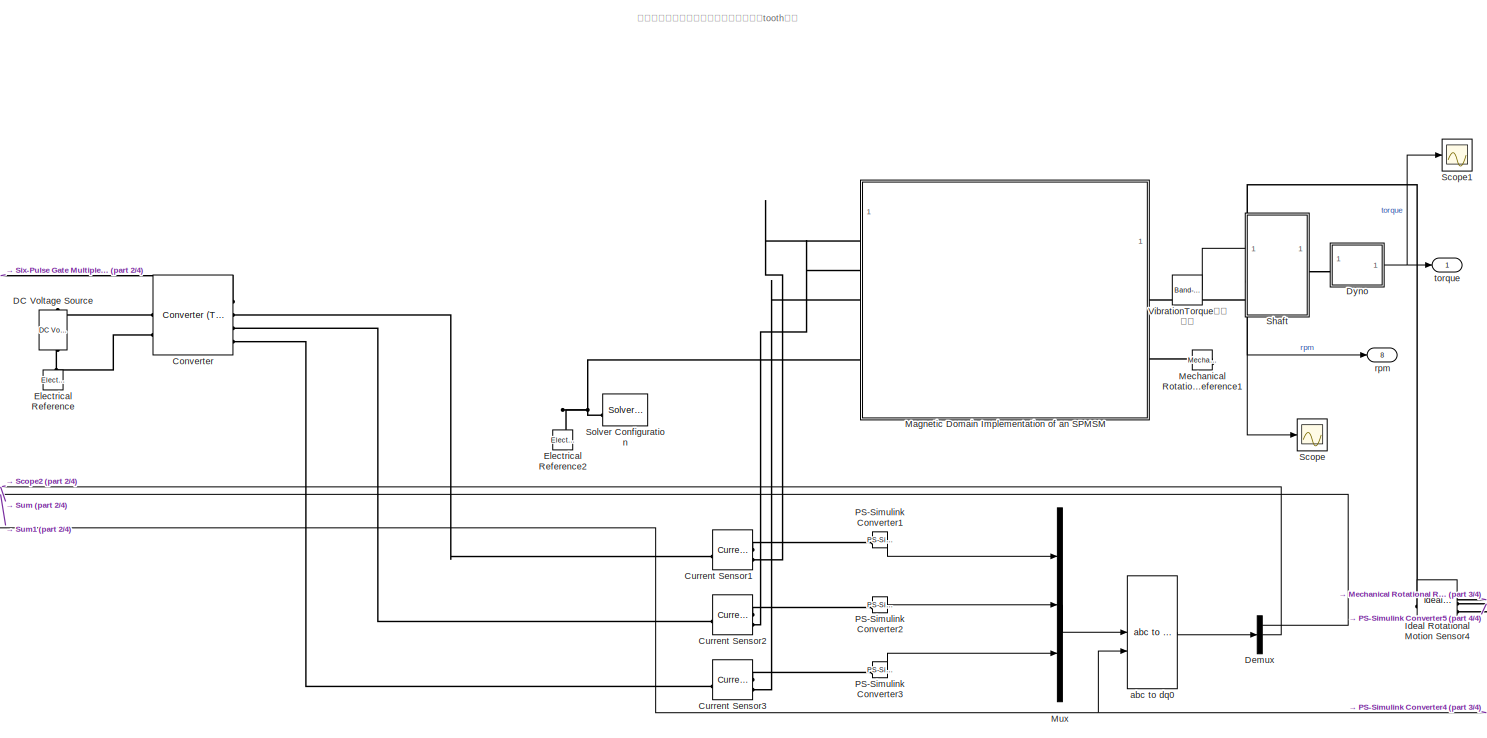
[diagram: root canvas - part 1/4, center side, full height]
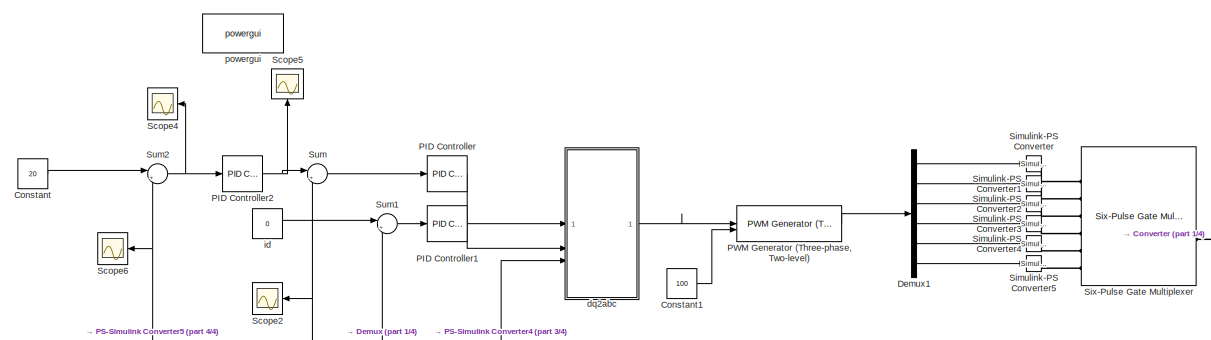
[diagram: root canvas - part 2/4, top left region]
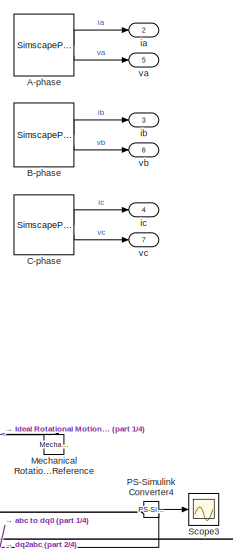
[diagram: root canvas - part 3/4, middle right region]
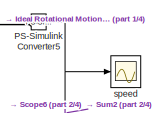
[diagram: root canvas - part 4/4, bottom right region]
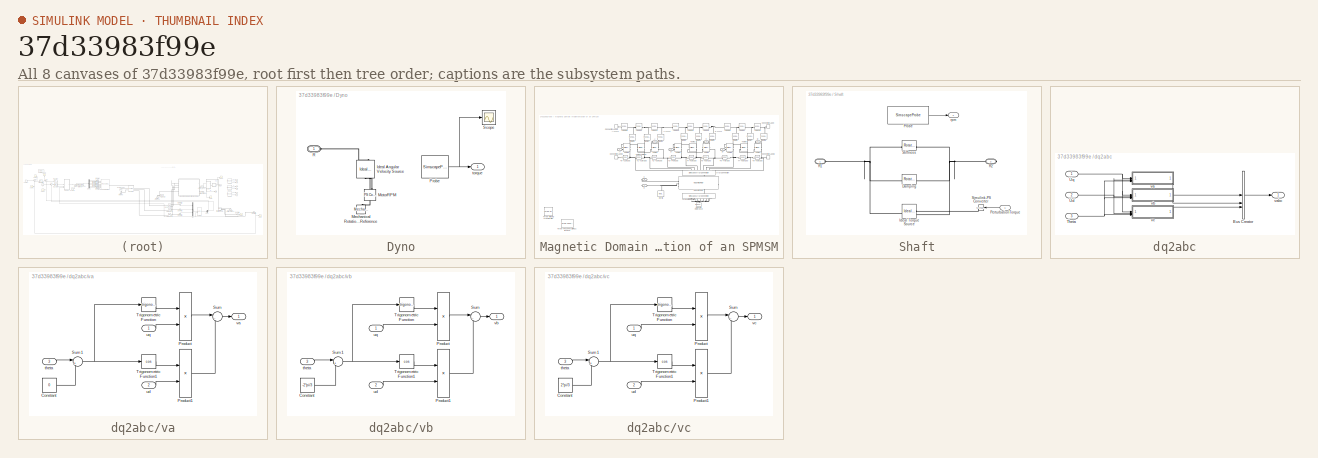
[diagram: thumbnail index - all 8 canvases of the model, root first then tree order]
MODEL slx_37d33983f99e
KIND model
CONFIG AbsTol = auto
CONFIG EnableMultiTasking = off
CONFIG FixedStep = auto
CONFIG MaxStep = auto
CONFIG MinStep = auto
CONFIG RelTol = 1e-3
CONFIG SampleTimeConstraint = Unconstrained
CONFIG SolverName = ode15s
CONFIG StartTime = 0.0
CONFIG StopTime = 10.0
BLOCK [SimscapeProbe] A-phase
  BoundBlock = 214
  Variables = {"i":{"Probing":"ON"},"n.v":{"Probing":"ON"}}
BLOCK [SimscapeProbe] B-phase
  BoundBlock = 215
  Variables = {"i":{"Probing":"ON"},"n.v":{"Probing":"ON"}}
BLOCK [SimscapeProbe] C-phase
  BoundBlock = 216
  Variables = {"i":{"Probing":"ON"},"n.v":{"Probing":"ON"}}
BLOCK [Constant] Constant
  Value = 20
BLOCK [Constant] Constant1
  Value = 100
BLOCK [Reference] Converter  REF=ee_lib/Semiconductors &
Converters/Converters/Converter
(Three-Phase)
  SourceBlock = ee_lib/Semiconductors &\nConverters/Converters/Converter\n(Three-Phase)
  SourceType = Converter\n(Three-Phase)
BLOCK [Reference] Current Sensor1  REF=fl_lib/Electrical/Electrical Sensors/Current Sensor
  SourceBlock = fl_lib/Electrical/Electrical Sensors/Current Sensor
  SourceType = Current Sensor
BLOCK [Reference] Current Sensor2  REF=fl_lib/Electrical/Electrical Sensors/Current Sensor
  SourceBlock = fl_lib/Electrical/Electrical Sensors/Current Sensor
  SourceType = Current Sensor
BLOCK [Reference] Current Sensor3  REF=fl_lib/Electrical/Electrical Sensors/Current Sensor
  SourceBlock = fl_lib/Electrical/Electrical Sensors/Current Sensor
  SourceType = Current Sensor
BLOCK [Reference] DC Voltage Source  REF=fl_lib/Electrical/Electrical Sources/DC Voltage Source
  NameLocation = left
  SourceBlock = fl_lib/Electrical/Electrical Sources/DC Voltage Source
  SourceType = DC Voltage Source
BLOCK [Demux] Demux
  Outputs = 3
BLOCK [Demux] Demux1
  Outputs = 6
BLOCK [SubSystem] Dyno
BLOCK [Reference] Dyno/Ideal Angular Velocity Source  REF=fl_lib/Mechanical/Mechanical Sources/Ideal Angular
Velocity Source
  NameLocation = right
  SourceBlock = fl_lib/Mechanical/Mechanical Sources/Ideal Angular\nVelocity Source
  SourceType = Ideal Angular\nVelocity Source
BLOCK [Reference] Dyno/Mechanical Rotational Reference  REF=fl_lib/Mechanical/Rotational Elements/Mechanical
Rotational Reference
  NameLocation = right
  SourceBlock = fl_lib/Mechanical/Rotational Elements/Mechanical\nRotational Reference
  SourceType = Mechanical\nRotational Reference
BLOCK [Reference] Dyno/MotorRPM  REF=fl_lib/Physical Signals/Sources/PS Constant
  NameLocation = right
  SourceBlock = fl_lib/Physical Signals/Sources/PS Constant
  SourceType = PS Constant
BLOCK [SimscapeProbe] Dyno/Probe
  BoundBlock = 148
  Variables = {"t":{"Probing":"ON"}}
BLOCK [PMIOPort] Dyno/R
  Side = Left
BLOCK [Scope] Dyno/Scope
  ActiveDisplayYMaximum = 1963.7653841058097
  ActiveDisplayYMinimum = -17672.741352339104
  DataLoggingVariableName = ScopeData1
  Floating = off
  GraphicalSettings = {"Style":{"BackgroundColor":[0.12941176470588237,0.12941176470588237,0.12941176470588237],"AxesColor":[0.07058823529411765,0.07058823529411765,0.07058823529411765],"LabelsColor":[0.8509803921568627,0.8509803921568627,0.8509803921568627],"PreserveColors":false,"Visible":[true],"LineStyle":["-"],"LineWidth":[1.5],"BarWidth":[0.9],"LineColor":["auto"],"LineFaceAlpha":[1],"LineEdgeAlpha":[1],"Marker":...<+1990ch>
  MultipleDisplayCache = [{"MaxYLimMag":17672.741352339104,"MaxYLimReal":1963.7653841058097,"MinYLimMag":0,"MinYLimReal":-17672.741352339104,"PlotAsMagnitudePhase":false,"ShowGrid":true,"ShowLegend":false,"Title":"%<SignalLabel>","YLabel":""}]
  NumInputPorts = 1
  ScopeFrameLocation = window
  WasSavedAsWebScope = on
  WindowPosition = [566.000000,347.000000,560.000000,420.000000,]
BLOCK [Outport] Dyno/torque
BLOCK [Reference] Electrical Reference  REF=fl_lib/Electrical/Electrical Elements/Electrical Reference
  NameLocation = right
  SourceBlock = fl_lib/Electrical/Electrical Elements/Electrical Reference
  SourceType = Electrical Reference
BLOCK [Reference] Electrical Reference2  REF=fl_lib/Electrical/Electrical Elements/Electrical Reference
  NameLocation = right
  SourceBlock = fl_lib/Electrical/Electrical Elements/Electrical Reference
  SourceType = Electrical Reference
BLOCK [Reference] Ideal Rotational Motion Sensor4  REF=fl_lib/Mechanical/Mechanical Sensors/Ideal Rotational
Motion Sensor
  SourceBlock = fl_lib/Mechanical/Mechanical Sensors/Ideal Rotational\nMotion Sensor
  SourceType = Ideal Rotational\nMotion Sensor
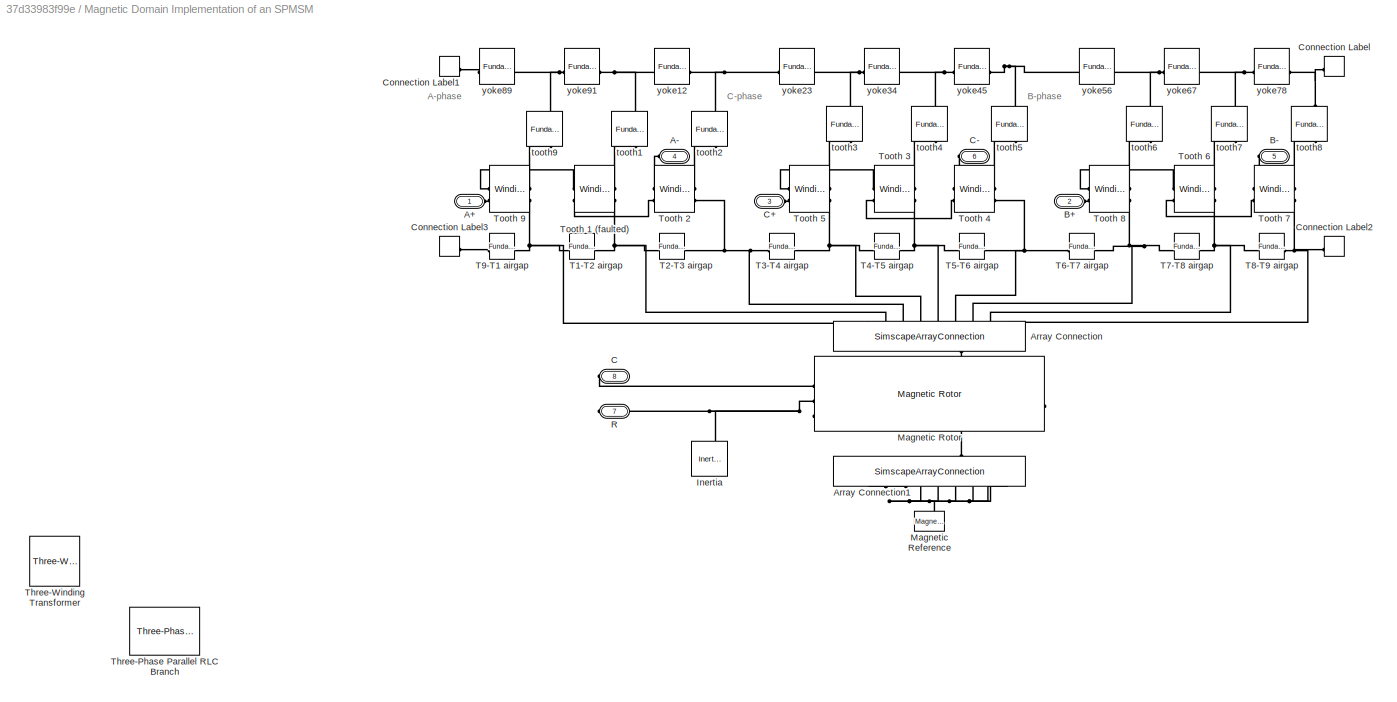
BLOCK [SubSystem] Magnetic Domain Implementation of an SPMSM
BLOCK [PMIOPort] Magnetic Domain Implementation of an SPMSM/A+
  Side = Left
BLOCK [PMIOPort] Magnetic Domain Implementation of an SPMSM/A-
  NameLocation = top
  Port = 4
  Side = Left
BLOCK [SimscapeArrayConnection] Magnetic Domain Implementation of an SPMSM/Array Connection
  Domain = foundation.magnetic.magnetic
  NameLocation = left
  NumScalarElements = 9
BLOCK [SimscapeArrayConnection] Magnetic Domain Implementation of an SPMSM/Array Connection1
  Domain = foundation.magnetic.magnetic
  NameLocation = right
  NumScalarElements = 9
BLOCK [PMIOPort] Magnetic Domain Implementation of an SPMSM/B+
  Port = 2
  Side = Left
BLOCK [PMIOPort] Magnetic Domain Implementation of an SPMSM/B-
  NameLocation = top
  Port = 5
  Side = Left
BLOCK [PMIOPort] Magnetic Domain Implementation of an SPMSM/C
  Port = 8
  Side = Right
BLOCK [PMIOPort] Magnetic Domain Implementation of an SPMSM/C+
  Port = 3
  Side = Left
BLOCK [PMIOPort] Magnetic Domain Implementation of an SPMSM/C-
  NameLocation = top
  Port = 6
  Side = Left
BLOCK [ConnectionLabel] Magnetic Domain Implementation of an SPMSM/Connection Label
  Label = Y
BLOCK [ConnectionLabel] Magnetic Domain Implementation of an SPMSM/Connection Label1
  Label = Y
  NameLocation = top
BLOCK [ConnectionLabel] Magnetic Domain Implementation of an SPMSM/Connection Label2
  Label = SL
BLOCK [ConnectionLabel] Magnetic Domain Implementation of an SPMSM/Connection Label3
  Label = SL
BLOCK [Reference] Magnetic Domain Implementation of an SPMSM/Inertia  REF=fl_lib/Mechanical/Rotational Elements/Inertia
  NameLocation = right
  SourceBlock = fl_lib/Mechanical/Rotational Elements/Inertia
  SourceType = Inertia
BLOCK [Reference] Magnetic Domain Implementation of an SPMSM/Magnetic Reference  REF=fl_lib/Magnetic/Magnetic Elements/Magnetic Reference
  NameLocation = right
  SourceBlock = fl_lib/Magnetic/Magnetic Elements/Magnetic Reference
  SourceType = Magnetic Reference
BLOCK [Reference] Magnetic Domain Implementation of an SPMSM/Magnetic Rotor  REF=ee_lib/Electromechanical/Magnetic Rotor
  SourceBlock = ee_lib/Electromechanical/Magnetic Rotor
  SourceType = Magnetic Rotor
BLOCK [PMIOPort] Magnetic Domain Implementation of an SPMSM/R
  Port = 7
  Side = Right
BLOCK [Reference] Magnetic Domain Implementation of an SPMSM/T1-T2 airgap  REF=fl_lib/Magnetic/Magnetic Elements/Fundamental
Reluctance
  SourceBlock = fl_lib/Magnetic/Magnetic Elements/Fundamental\nReluctance
  SourceType = Fundamental\nReluctance
BLOCK [Reference] Magnetic Domain Implementation of an SPMSM/T2-T3 airgap  REF=fl_lib/Magnetic/Magnetic Elements/Fundamental
Reluctance
  SourceBlock = fl_lib/Magnetic/Magnetic Elements/Fundamental\nReluctance
  SourceType = Fundamental\nReluctance
BLOCK [Reference] Magnetic Domain Implementation of an SPMSM/T3-T4 airgap  REF=fl_lib/Magnetic/Magnetic Elements/Fundamental
Reluctance
  SourceBlock = fl_lib/Magnetic/Magnetic Elements/Fundamental\nReluctance
  SourceType = Fundamental\nReluctance
BLOCK [Reference] Magnetic Domain Implementation of an SPMSM/T4-T5 airgap  REF=fl_lib/Magnetic/Magnetic Elements/Fundamental
Reluctance
  SourceBlock = fl_lib/Magnetic/Magnetic Elements/Fundamental\nReluctance
  SourceType = Fundamental\nReluctance
BLOCK [Reference] Magnetic Domain Implementation of an SPMSM/T5-T6 airgap  REF=fl_lib/Magnetic/Magnetic Elements/Fundamental
Reluctance
  SourceBlock = fl_lib/Magnetic/Magnetic Elements/Fundamental\nReluctance
  SourceType = Fundamental\nReluctance
BLOCK [Reference] Magnetic Domain Implementation of an SPMSM/T6-T7 airgap  REF=fl_lib/Magnetic/Magnetic Elements/Fundamental
Reluctance
  SourceBlock = fl_lib/Magnetic/Magnetic Elements/Fundamental\nReluctance
  SourceType = Fundamental\nReluctance
BLOCK [Reference] Magnetic Domain Implementation of an SPMSM/T7-T8 airgap  REF=fl_lib/Magnetic/Magnetic Elements/Fundamental
Reluctance
  SourceBlock = fl_lib/Magnetic/Magnetic Elements/Fundamental\nReluctance
  SourceType = Fundamental\nReluctance
BLOCK [Reference] Magnetic Domain Implementation of an SPMSM/T8-T9 airgap  REF=fl_lib/Magnetic/Magnetic Elements/Fundamental
Reluctance
  SourceBlock = fl_lib/Magnetic/Magnetic Elements/Fundamental\nReluctance
  SourceType = Fundamental\nReluctance
BLOCK [Reference] Magnetic Domain Implementation of an SPMSM/T9-T1 airgap  REF=fl_lib/Magnetic/Magnetic Elements/Fundamental
Reluctance
  SourceBlock = fl_lib/Magnetic/Magnetic Elements/Fundamental\nReluctance
  SourceType = Fundamental\nReluctance
BLOCK [Reference] Magnetic Domain Implementation of an SPMSM/Three-Phase Parallel RLC Branch  REF=spsThreePhaseParallelRLCBranchLib/Three-Phase
Parallel RLC Branch
  AttributesFormatString = \n
  LibrarySourceBlock = sps_lib/Passives/Three-Phase\nParallel RLC Branch
  SourceBlock = spsThreePhaseParallelRLCBranchLib/Three-Phase\nParallel RLC Branch
  SourceType = Three-Phase Parallel RLC Branch
BLOCK [Reference] Magnetic Domain Implementation of an SPMSM/Three-Winding Transformer  REF=simrfV2elements/Three-Winding
Transformer
  SourceBlock = simrfV2elements/Three-Winding\nTransformer
  SourceType = Three-Winding\nTransformer
BLOCK [Reference] Magnetic Domain Implementation of an SPMSM/Tooth 1 (faulted)  REF=ee_lib/Passive/Winding
  SourceBlock = ee_lib/Passive/Winding
  SourceType = Winding
BLOCK [Reference] Magnetic Domain Implementation of an SPMSM/Tooth 2  REF=ee_lib/Passive/Winding
  SourceBlock = ee_lib/Passive/Winding
  SourceType = Winding
BLOCK [Reference] Magnetic Domain Implementation of an SPMSM/Tooth 3  REF=ee_lib/Passive/Winding
  SourceBlock = ee_lib/Passive/Winding
  SourceType = Winding
BLOCK [Reference] Magnetic Domain Implementation of an SPMSM/Tooth 4  REF=ee_lib/Passive/Winding
  SourceBlock = ee_lib/Passive/Winding
  SourceType = Winding
BLOCK [Reference] Magnetic Domain Implementation of an SPMSM/Tooth 5  REF=ee_lib/Passive/Winding
  SourceBlock = ee_lib/Passive/Winding
  SourceType = Winding
BLOCK [Reference] Magnetic Domain Implementation of an SPMSM/Tooth 6  REF=ee_lib/Passive/Winding
  SourceBlock = ee_lib/Passive/Winding
  SourceType = Winding
BLOCK [Reference] Magnetic Domain Implementation of an SPMSM/Tooth 7  REF=ee_lib/Passive/Winding
  SourceBlock = ee_lib/Passive/Winding
  SourceType = Winding
BLOCK [Reference] Magnetic Domain Implementation of an SPMSM/Tooth 8  REF=ee_lib/Passive/Winding
  SourceBlock = ee_lib/Passive/Winding
  SourceType = Winding
BLOCK [Reference] Magnetic Domain Implementation of an SPMSM/Tooth 9  REF=ee_lib/Passive/Winding
  SourceBlock = ee_lib/Passive/Winding
  SourceType = Winding
BLOCK [Reference] Magnetic Domain Implementation of an SPMSM/tooth1  REF=fl_lib/Magnetic/Magnetic Elements/Fundamental
Reluctance
  NameLocation = left
  SourceBlock = fl_lib/Magnetic/Magnetic Elements/Fundamental\nReluctance
  SourceType = Fundamental\nReluctance
BLOCK [Reference] Magnetic Domain Implementation of an SPMSM/tooth2  REF=fl_lib/Magnetic/Magnetic Elements/Fundamental
Reluctance
  NameLocation = left
  SourceBlock = fl_lib/Magnetic/Magnetic Elements/Fundamental\nReluctance
  SourceType = Fundamental\nReluctance
BLOCK [Reference] Magnetic Domain Implementation of an SPMSM/tooth3  REF=fl_lib/Magnetic/Magnetic Elements/Fundamental
Reluctance
  NameLocation = left
  SourceBlock = fl_lib/Magnetic/Magnetic Elements/Fundamental\nReluctance
  SourceType = Fundamental\nReluctance
BLOCK [Reference] Magnetic Domain Implementation of an SPMSM/tooth4  REF=fl_lib/Magnetic/Magnetic Elements/Fundamental
Reluctance
  NameLocation = left
  SourceBlock = fl_lib/Magnetic/Magnetic Elements/Fundamental\nReluctance
  SourceType = Fundamental\nReluctance
BLOCK [Reference] Magnetic Domain Implementation of an SPMSM/tooth5  REF=fl_lib/Magnetic/Magnetic Elements/Fundamental
Reluctance
  NameLocation = left
  SourceBlock = fl_lib/Magnetic/Magnetic Elements/Fundamental\nReluctance
  SourceType = Fundamental\nReluctance
BLOCK [Reference] Magnetic Domain Implementation of an SPMSM/tooth6  REF=fl_lib/Magnetic/Magnetic Elements/Fundamental
Reluctance
  NameLocation = left
  SourceBlock = fl_lib/Magnetic/Magnetic Elements/Fundamental\nReluctance
  SourceType = Fundamental\nReluctance
BLOCK [Reference] Magnetic Domain Implementation of an SPMSM/tooth7  REF=fl_lib/Magnetic/Magnetic Elements/Fundamental
Reluctance
  NameLocation = left
  SourceBlock = fl_lib/Magnetic/Magnetic Elements/Fundamental\nReluctance
  SourceType = Fundamental\nReluctance
BLOCK [Reference] Magnetic Domain Implementation of an SPMSM/tooth8  REF=fl_lib/Magnetic/Magnetic Elements/Fundamental
Reluctance
  NameLocation = left
  SourceBlock = fl_lib/Magnetic/Magnetic Elements/Fundamental\nReluctance
  SourceType = Fundamental\nReluctance
BLOCK [Reference] Magnetic Domain Implementation of an SPMSM/tooth9  REF=fl_lib/Magnetic/Magnetic Elements/Fundamental
Reluctance
  NameLocation = left
  SourceBlock = fl_lib/Magnetic/Magnetic Elements/Fundamental\nReluctance
  SourceType = Fundamental\nReluctance
BLOCK [Reference] Magnetic Domain Implementation of an SPMSM/yoke12  REF=fl_lib/Magnetic/Magnetic Elements/Fundamental
Reluctance
  SourceBlock = fl_lib/Magnetic/Magnetic Elements/Fundamental\nReluctance
  SourceType = Fundamental\nReluctance
BLOCK [Reference] Magnetic Domain Implementation of an SPMSM/yoke23  REF=fl_lib/Magnetic/Magnetic Elements/Fundamental
Reluctance
  SourceBlock = fl_lib/Magnetic/Magnetic Elements/Fundamental\nReluctance
  SourceType = Fundamental\nReluctance
BLOCK [Reference] Magnetic Domain Implementation of an SPMSM/yoke34  REF=fl_lib/Magnetic/Magnetic Elements/Fundamental
Reluctance
  SourceBlock = fl_lib/Magnetic/Magnetic Elements/Fundamental\nReluctance
  SourceType = Fundamental\nReluctance
BLOCK [Reference] Magnetic Domain Implementation of an SPMSM/yoke45  REF=fl_lib/Magnetic/Magnetic Elements/Fundamental
Reluctance
  SourceBlock = fl_lib/Magnetic/Magnetic Elements/Fundamental\nReluctance
  SourceType = Fundamental\nReluctance
BLOCK [Reference] Magnetic Domain Implementation of an SPMSM/yoke56  REF=fl_lib/Magnetic/Magnetic Elements/Fundamental
Reluctance
  SourceBlock = fl_lib/Magnetic/Magnetic Elements/Fundamental\nReluctance
  SourceType = Fundamental\nReluctance
BLOCK [Reference] Magnetic Domain Implementation of an SPMSM/yoke67  REF=fl_lib/Magnetic/Magnetic Elements/Fundamental
Reluctance
  SourceBlock = fl_lib/Magnetic/Magnetic Elements/Fundamental\nReluctance
  SourceType = Fundamental\nReluctance
BLOCK [Reference] Magnetic Domain Implementation of an SPMSM/yoke78  REF=fl_lib/Magnetic/Magnetic Elements/Fundamental
Reluctance
  SourceBlock = fl_lib/Magnetic/Magnetic Elements/Fundamental\nReluctance
  SourceType = Fundamental\nReluctance
BLOCK [Reference] Magnetic Domain Implementation of an SPMSM/yoke89  REF=fl_lib/Magnetic/Magnetic Elements/Fundamental
Reluctance
  SourceBlock = fl_lib/Magnetic/Magnetic Elements/Fundamental\nReluctance
  SourceType = Fundamental\nReluctance
BLOCK [Reference] Magnetic Domain Implementation of an SPMSM/yoke91  REF=fl_lib/Magnetic/Magnetic Elements/Fundamental
Reluctance
  SourceBlock = fl_lib/Magnetic/Magnetic Elements/Fundamental\nReluctance
  SourceType = Fundamental\nReluctance
BLOCK [Reference] Mechanical Rotational Reference  REF=fl_lib/Mechanical/Rotational Elements/Mechanical
Rotational Reference
  NameLocation = right
  SourceBlock = fl_lib/Mechanical/Rotational Elements/Mechanical\nRotational Reference
  SourceType = Mechanical\nRotational Reference
BLOCK [Reference] Mechanical Rotational Reference1  REF=fl_lib/Mechanical/Rotational Elements/Mechanical
Rotational Reference
  SourceBlock = fl_lib/Mechanical/Rotational Elements/Mechanical\nRotational Reference
  SourceType = Mechanical\nRotational Reference
BLOCK [Mux] Mux
  DisplayOption = bar
  Inputs = 3
BLOCK [Reference] PID Controller  REF=slpidlib/PID Controller
  SourceBlock = slpidlib/PID Controller
  SourceType = PID 1dof
BLOCK [Reference] PID Controller1  REF=slpidlib/PID Controller
  SourceBlock = slpidlib/PID Controller
  SourceType = PID 1dof
BLOCK [Reference] PID Controller2  REF=slpidlib/PID Controller
  SourceBlock = slpidlib/PID Controller
  SourceType = PID 1dof
BLOCK [Reference] PS-Simulink Converter1  REF=nesl_utility/PS-Simulink
Converter
  SourceBlock = nesl_utility/PS-Simulink\nConverter
  SourceType = PS-Simulink\nConverter
BLOCK [Reference] PS-Simulink Converter2  REF=nesl_utility/PS-Simulink
Converter
  SourceBlock = nesl_utility/PS-Simulink\nConverter
  SourceType = PS-Simulink\nConverter
BLOCK [Reference] PS-Simulink Converter3  REF=nesl_utility/PS-Simulink
Converter
  SourceBlock = nesl_utility/PS-Simulink\nConverter
  SourceType = PS-Simulink\nConverter
BLOCK [Reference] PS-Simulink Converter4  REF=nesl_utility/PS-Simulink
Converter
  SourceBlock = nesl_utility/PS-Simulink\nConverter
  SourceType = PS-Simulink\nConverter
BLOCK [Reference] PS-Simulink Converter5  REF=nesl_utility/PS-Simulink
Converter
  SourceBlock = nesl_utility/PS-Simulink\nConverter
  SourceType = PS-Simulink\nConverter
BLOCK [Reference] PWM Generator (Three-phase, Two-level)  REF=eePwmGeneratorTwoLevel/PWM Generator
(Three-phase, Two-level)
  LibrarySourceBlock = ee_sl_lib/Pulse Width\nModulation/PWM Generator\n(Three-phase, Two-level)
  SourceBlock = eePwmGeneratorTwoLevel/PWM Generator\n(Three-phase, Two-level)
  SourceType = PWM Generator (three-phase, two-level)
BLOCK [Scope] Scope
  ActiveDisplayYMaximum = 16.410945963930487
  ActiveDisplayYMinimum = 5.9889874068411224
  Floating = off
  GraphicalSettings = {"AxesScalingProperties":{"AlignXAxis":"Center","AlignYAxis":"Center","AutoScaleXAxisLimits":false,"AxesScaling":"Manual","AxesScalingNumUpdates":10,"ExpandOnly":true,"ScaleAxesLimitsAtStop":false,"XAxisDataRange":100,"YAxisDataRange":80},"DisplayProperties":{"ColorOrder":["auto","auto","auto","auto","auto","auto","auto","auto","auto","auto","auto","auto","auto","auto","auto","auto","auto","auto",...<+1995ch>
  MultipleDisplayCache = [{"MaxYLimMag":17.686941493053482,"MaxYLimReal":16.410945963930487,"MinYLimMag":0,"MinYLimReal":5.9889874068411224,"PlotAsMagnitudePhase":false,"ShowGrid":true,"ShowLegend":false,"Title":"%<SignalLabel>","YLabel":""}]
  NumInputPorts = 1
  ScopeFrameLocation = window
  WasSavedAsWebScope = on
  WindowPosition = [680.000000,330.000000,560.000000,420.000000,]
BLOCK [Scope] Scope1
  ActiveDisplayYMaximum = 1963.7070418694955
  ActiveDisplayYMinimum = -17672.734869868404
  DataLoggingVariableName = ScopeData2
  Floating = off
  GraphicalSettings = {"Style":{"BackgroundColor":[0.12941176470588237,0.12941176470588237,0.12941176470588237],"AxesColor":[0.07058823529411765,0.07058823529411765,0.07058823529411765],"LabelsColor":[0.8509803921568627,0.8509803921568627,0.8509803921568627],"PreserveColors":false,"Visible":[true],"LineStyle":["-"],"LineWidth":[1.5],"BarWidth":[0.9],"LineColor":["auto"],"LineFaceAlpha":[1],"LineEdgeAlpha":[1],"Marker":...<+1894ch>
  MultipleDisplayCache = [{"MaxYLimMag":17672.734869868404,"MaxYLimReal":1963.7070418694955,"MinYLimMag":0,"MinYLimReal":-17672.734869868404,"PlotAsMagnitudePhase":false,"ShowGrid":true,"ShowLegend":false,"Title":"%<SignalLabel>","YLabel":""}]
  NumInputPorts = 1
  ScopeFrameLocation = window
  WasSavedAsWebScope = on
  WindowPosition = [630.000000,333.000000,560.000000,420.000000,]
BLOCK [Scope] Scope2
  ActiveDisplayYMaximum = 0.436398147050316
  ActiveDisplayYMinimum = -0.416473738906253
  DataLoggingVariableName = ScopeData5
  Floating = off
  GraphicalSettings = {"AxesScalingProperties":{"AlignXAxis":"Center","AlignYAxis":"Center","AutoScaleXAxisLimits":false,"AxesScaling":"Manual","AxesScalingNumUpdates":10,"ExpandOnly":true,"ScaleAxesLimitsAtStop":false,"XAxisDataRange":100,"YAxisDataRange":80},"DisplayProperties":{"ColorOrder":["auto","auto","auto","auto","auto","auto","auto","auto","auto","auto","auto","auto","auto","auto","auto","auto","auto","auto",...<+2024ch>
  MultipleDisplayCache = [{"MaxYLimMag":8.6529136210454123,"MaxYLimReal":0.436398147050316,"MinYLimMag":0,"MinYLimReal":-0.416473738906253,"PlotAsMagnitudePhase":false,"ShowGrid":true,"ShowLegend":true,"Title":"%<SignalLabel>","YLabel":"скорость"}]
  NumInputPorts = 1
  ScopeFrameLocation = window
  ShowLegend = on
  ShowTimeAxisLabel = on
  WasSavedAsWebScope = on
  WindowPosition = [1.000000,49.000000,1920.000000,954.000000,]
  YLabel = скорость
BLOCK [Scope] Scope3
  ActiveDisplayYMaximum = 188.49485684758849
  ActiveDisplayYMinimum = -20.943872983065386
  DataLoggingVariableName = ScopeData3
  Floating = off
  GraphicalSettings = {"Style":{"BackgroundColor":[0.12941176470588237,0.12941176470588237,0.12941176470588237],"AxesColor":[0.07058823529411765,0.07058823529411765,0.07058823529411765],"LabelsColor":[0.8509803921568627,0.8509803921568627,0.8509803921568627],"PreserveColors":false,"Visible":[true],"LineStyle":["-"],"LineWidth":[1.5],"BarWidth":[0.9],"LineColor":["auto"],"LineFaceAlpha":[1],"LineEdgeAlpha":[1],"Marker":...<+2003ch>
  MultipleDisplayCache = [{"MaxYLimMag":188.49485684758849,"MaxYLimReal":188.49485684758849,"MinYLimMag":0,"MinYLimReal":-20.943872983065386,"PlotAsMagnitudePhase":false,"ShowGrid":true,"ShowLegend":false,"Title":"%<SignalLabel>","YLabel":""}]
  NumInputPorts = 1
  ScopeFrameLocation = window
  WasSavedAsWebScope = on
  WindowPosition = [993.000000,465.000000,560.000000,428.000000,]
BLOCK [Scope] Scope4
  ActiveDisplayYMaximum = 20.092232680750982
  ActiveDisplayYMinimum = 2.2678285118136117
  DataLoggingVariableName = ScopeData8
  Floating = off
  GraphicalSettings = {"AxesScalingProperties":{"AlignXAxis":"Center","AlignYAxis":"Center","AutoScaleXAxisLimits":false,"AxesScaling":"Manual","AxesScalingNumUpdates":10,"ExpandOnly":true,"ScaleAxesLimitsAtStop":false,"XAxisDataRange":100,"YAxisDataRange":80},"DisplayProperties":{"ColorOrder":["auto","auto","auto","auto","auto","auto","auto","auto","auto","auto","auto","auto","auto","auto","auto","auto","auto","auto",...<+2008ch>
  MultipleDisplayCache = [{"MaxYLimMag":21.965140559625347,"MaxYLimReal":20.092232680750982,"MinYLimMag":2.3137349633718949,"MinYLimReal":2.2678285118136117,"PlotAsMagnitudePhase":false,"ShowGrid":true,"ShowLegend":true,"Title":"%<SignalLabel>","YLabel":"скорость"}]
  NumInputPorts = 1
  ScopeFrameLocation = window
  ShowLegend = on
  ShowTimeAxisLabel = on
  WasSavedAsWebScope = on
  WindowPosition = [1.000000,49.000000,1920.000000,954.000000,]
  YLabel = скорость
BLOCK [Scope] Scope5
  ActiveDisplayYMaximum = 1942.3454210939431
  ActiveDisplayYMinimum = -203.76901912599916
  DataLoggingVariableName = ScopeData9
  Floating = off
  GraphicalSettings = {"Style":{"BackgroundColor":[0.12941176470588237,0.12941176470588237,0.12941176470588237],"AxesColor":[0.07058823529411765,0.07058823529411765,0.07058823529411765],"LabelsColor":[0.8509803921568627,0.8509803921568627,0.8509803921568627],"PreserveColors":false,"Visible":[true],"LineStyle":["-"],"LineWidth":[1.5],"BarWidth":[0.9],"LineColor":["auto"],"LineFaceAlpha":[1],"LineEdgeAlpha":[1],"Marker":...<+2027ch>
  MultipleDisplayCache = [{"MaxYLimMag":1942.3454210939431,"MaxYLimReal":1942.3454210939431,"MinYLimMag":0,"MinYLimReal":-203.76901912599916,"PlotAsMagnitudePhase":false,"ShowGrid":true,"ShowLegend":true,"Title":"%<SignalLabel>","YLabel":"скорость"}]
  NameLocation = left
  NumInputPorts = 1
  ScopeFrameLocation = window
  ShowLegend = on
  ShowTimeAxisLabel = on
  WasSavedAsWebScope = on
  WindowPosition = [1.000000,49.000000,1920.000000,954.000000,]
  YLabel = скорость
BLOCK [Scope] Scope6
  ActiveDisplayYMaximum = 18.4251262370962
  ActiveDisplayYMinimum = -2.0472362485662443
  DataLoggingVariableName = ScopeData6
  Floating = off
  GraphicalSettings = {"Style":{"BackgroundColor":[0.12941176470588237,0.12941176470588237,0.12941176470588237],"AxesColor":[0.07058823529411765,0.07058823529411765,0.07058823529411765],"LabelsColor":[0.8509803921568627,0.8509803921568627,0.8509803921568627],"PreserveColors":false,"Visible":[true],"LineStyle":["-"],"LineWidth":[1.5],"BarWidth":[0.9],"LineColor":["auto"],"LineFaceAlpha":[1],"LineEdgeAlpha":[1],"Marker":...<+2041ch>
  MultipleDisplayCache = [{"MaxYLimMag":18.4251262370962,"MaxYLimReal":18.4251262370962,"MinYLimMag":0,"MinYLimReal":-2.0472362485662443,"PlotAsMagnitudePhase":false,"ShowGrid":true,"ShowLegend":true,"Title":"%<SignalLabel>","YLabel":"скорость"}]
  NumInputPorts = 1
  ScopeFrameLocation = window
  ShowLegend = on
  ShowTimeAxisLabel = on
  WasSavedAsWebScope = on
  WindowPosition = [1.000000,49.000000,1920.000000,954.000000,]
  YLabel = скорость
BLOCK [SubSystem] Shaft
  NameLocation = top
  PortSchema = {"entries":[{"content":{"sides":[{"content":{"connectorIds":["In1","LConn1"]},"type":"ConnectorPlacement.EquallySpacedRectSide","uuid":"d15f0b0a-376f-42bd-94fa-6b80795b7e9e"},{"content":{"connectorIds":["RConn1"],"side":"RIGHT"},"type":"ConnectorPlacement.EquallySpacedRectSide","uuid":"1c10d066-ee05-4c09-9add-16f0039017c8"},{"content":{"connectorIds":["Out1"],"side":"TOP"},"type":"ConnectorPlaceme...<+383ch>
BLOCK [Reference] Shaft/Damping  REF=fl_lib/Mechanical/Rotational Elements/Rotational Damper
  SourceBlock = fl_lib/Mechanical/Rotational Elements/Rotational Damper
  SourceType = Rotational Damper
BLOCK [Reference] Shaft/Ideal Torque Source  REF=fl_lib/Mechanical/Mechanical Sources/Ideal Torque Source
  SourceBlock = fl_lib/Mechanical/Mechanical Sources/Ideal Torque Source
  SourceType = Ideal Torque Source
BLOCK [Inport] Shaft/PerturbationTorque
  NameLocation = top
BLOCK [SimscapeProbe] Shaft/Probe
  BoundBlock = 225
  Variables = {"R.w":{"Probing":"ON"}}
BLOCK [PMIOPort] Shaft/R1
  Side = Left
BLOCK [PMIOPort] Shaft/R2
  Port = 2
  Side = Right
BLOCK [Reference] Shaft/Simulink-PS Converter  REF=nesl_utility/Simulink-PS
Converter
  NameLocation = top
  SourceBlock = nesl_utility/Simulink-PS\nConverter
  SourceType = Simulink-PS\nConverter
BLOCK [Reference] Shaft/Stiffness  REF=fl_lib/Mechanical/Rotational Elements/Rotational Spring
  SourceBlock = fl_lib/Mechanical/Rotational Elements/Rotational Spring
  SourceType = Rotational Spring
BLOCK [Outport] Shaft/rpm
BLOCK [Reference] Simulink-PS Converter  REF=nesl_utility/Simulink-PS
Converter
  SourceBlock = nesl_utility/Simulink-PS\nConverter
  SourceType = Simulink-PS\nConverter
BLOCK [Reference] Simulink-PS Converter1  REF=nesl_utility/Simulink-PS
Converter
  SourceBlock = nesl_utility/Simulink-PS\nConverter
  SourceType = Simulink-PS\nConverter
BLOCK [Reference] Simulink-PS Converter2  REF=nesl_utility/Simulink-PS
Converter
  SourceBlock = nesl_utility/Simulink-PS\nConverter
  SourceType = Simulink-PS\nConverter
BLOCK [Reference] Simulink-PS Converter3  REF=nesl_utility/Simulink-PS
Converter
  SourceBlock = nesl_utility/Simulink-PS\nConverter
  SourceType = Simulink-PS\nConverter
BLOCK [Reference] Simulink-PS Converter4  REF=nesl_utility/Simulink-PS
Converter
  SourceBlock = nesl_utility/Simulink-PS\nConverter
  SourceType = Simulink-PS\nConverter
BLOCK [Reference] Simulink-PS Converter5  REF=nesl_utility/Simulink-PS
Converter
  SourceBlock = nesl_utility/Simulink-PS\nConverter
  SourceType = Simulink-PS\nConverter
BLOCK [Reference] Six-Pulse Gate Multiplexer  REF=ee_lib/Semiconductors &
Converters/Converters/Six-Pulse Gate
Multiplexer
  SourceBlock = ee_lib/Semiconductors &\nConverters/Converters/Six-Pulse Gate\nMultiplexer
  SourceType = Six-Pulse Gate\nMultiplexer
BLOCK [Reference] Solver Configuration  REF=nesl_utility/Solver
Configuration
  SourceBlock = nesl_utility/Solver\nConfiguration
  SourceType = Solver\nConfiguration
BLOCK [Sum] Sum
  Inputs = |+-
BLOCK [Sum] Sum1
  Inputs = |+-
BLOCK [Sum] Sum2
  Inputs = |+-
BLOCK [Reference] VibrationTorque震动转矩  REF=simulink/Sources/Band-Limited
White Noise
  SourceBlock = simulink/Sources/Band-Limited\nWhite Noise
  SourceType = Band-Limited White Noise.
BLOCK [Reference] abc to dq0  REF=spsabctodq0Lib/abc to dq0
  LibrarySourceBlock = sps_lib/Control/abc to dq0
  SourceBlock = spsabctodq0Lib/abc to dq0
  SourceType = abc to dq0 Transformation
BLOCK [SubSystem] dq2abc
BLOCK [BusCreator] dq2abc/Bus Creator
  DisplayOption = bar
  InheritFromInputs = on
  Inputs = 3
BLOCK [Inport] dq2abc/Theta
  Port = 3
BLOCK [Inport] dq2abc/Ud
  Port = 2
BLOCK [Inport] dq2abc/Uq
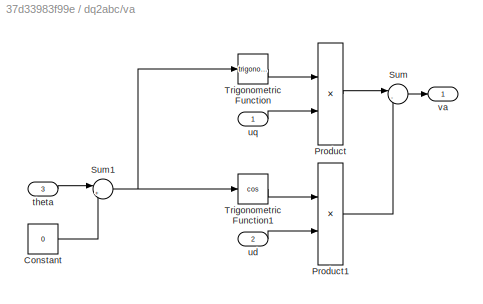
BLOCK [SubSystem] dq2abc/va
BLOCK [Constant] dq2abc/va/Constant
  Value = 0
BLOCK [Product] dq2abc/va/Product
BLOCK [Product] dq2abc/va/Product1
BLOCK [Sum] dq2abc/va/Sum
  Inputs = |-+
BLOCK [Sum] dq2abc/va/Sum1
  Inputs = |++
BLOCK [Trigonometry] dq2abc/va/Trigonometric Function
BLOCK [Trigonometry] dq2abc/va/Trigonometric Function1
  Operator = cos
BLOCK [Inport] dq2abc/va/theta
  NameLocation = top
  Port = 3
BLOCK [Inport] dq2abc/va/ud
  Port = 2
BLOCK [Inport] dq2abc/va/uq
BLOCK [Outport] dq2abc/va/va
  VectorParamsAs1DForOutWhenUnconnected = off
BLOCK [Outport] dq2abc/vabc
  VectorParamsAs1DForOutWhenUnconnected = off
BLOCK [SubSystem] dq2abc/vb
BLOCK [Constant] dq2abc/vb/Constant
  Value = -2*pi/3
BLOCK [Product] dq2abc/vb/Product
BLOCK [Product] dq2abc/vb/Product1
BLOCK [Sum] dq2abc/vb/Sum
  Inputs = |-+
BLOCK [Sum] dq2abc/vb/Sum1
  Inputs = |++
BLOCK [Trigonometry] dq2abc/vb/Trigonometric Function
BLOCK [Trigonometry] dq2abc/vb/Trigonometric Function1
  Operator = cos
BLOCK [Inport] dq2abc/vb/theta
  NameLocation = top
  Port = 3
BLOCK [Inport] dq2abc/vb/ud
  Port = 2
BLOCK [Inport] dq2abc/vb/uq
BLOCK [Outport] dq2abc/vb/vb
  VectorParamsAs1DForOutWhenUnconnected = off
BLOCK [SubSystem] dq2abc/vc
BLOCK [Constant] dq2abc/vc/Constant
  Value = 2*pi/3
BLOCK [Product] dq2abc/vc/Product
BLOCK [Product] dq2abc/vc/Product1
BLOCK [Sum] dq2abc/vc/Sum
  Inputs = |-+
BLOCK [Sum] dq2abc/vc/Sum1
  Inputs = |++
BLOCK [Trigonometry] dq2abc/vc/Trigonometric Function
BLOCK [Trigonometry] dq2abc/vc/Trigonometric Function1
  Operator = cos
BLOCK [Inport] dq2abc/vc/theta
  NameLocation = top
  Port = 3
BLOCK [Inport] dq2abc/vc/ud
  Port = 2
BLOCK [Inport] dq2abc/vc/uq
BLOCK [Outport] dq2abc/vc/vc
  VectorParamsAs1DForOutWhenUnconnected = off
BLOCK [Outport] ia
  Port = 2
BLOCK [Outport] ib
  Port = 3
BLOCK [Outport] ic
  Port = 4
BLOCK [Constant] id
  Value = 0
BLOCK [Reference] powergui  REF=spspowerguiLib/powergui
  LibrarySourceBlock = sps_lib/powergui
  Priority = 1
  SourceBlock = spspowerguiLib/powergui
  SourceType = PSB option menu block
BLOCK [Outport] rpm
  Port = 8
BLOCK [Scope] speed
  ActiveDisplayYMaximum = 15.760330288068594
  ActiveDisplayYMinimum = 15.541713214540213
  DataLoggingVariableName = ScopeData7
  Floating = off
  GraphicalSettings = {"AxesScalingProperties":{"AlignXAxis":"Center","AlignYAxis":"Center","AutoScaleXAxisLimits":false,"AxesScaling":"Manual","AxesScalingNumUpdates":10,"ExpandOnly":true,"ScaleAxesLimitsAtStop":false,"XAxisDataRange":100,"YAxisDataRange":80},"DisplayProperties":{"ColorOrder":["auto","auto","auto","auto","auto","auto","auto","auto","auto","auto","auto","auto","auto","auto","auto","auto","auto","auto",...<+2014ch>
  MultipleDisplayCache = [{"MaxYLimMag":188.49485684758849,"MaxYLimReal":15.760330288068594,"MinYLimMag":0,"MinYLimReal":15.541713214540213,"PlotAsMagnitudePhase":false,"ShowGrid":true,"ShowLegend":false,"Title":"%<SignalLabel>","YLabel":""}]
  NumInputPorts = 1
  ScopeFrameLocation = window
  WasSavedAsWebScope = on
  WindowPosition = [593.000000,316.000000,560.000000,428.000000,]
BLOCK [Outport] torque
BLOCK [Outport] va
  Port = 5
BLOCK [Outport] vb
  Port = 6
BLOCK [Outport] vc
  Port = 7
ANNOTATION (root): 现有两个故障，扰动转矩故障，还有一个tooth故障
ANNOTATION Magnetic Domain Implementation of an SPMSM: A-phase
ANNOTATION Magnetic Domain Implementation of an SPMSM: B-phase
ANNOTATION Magnetic Domain Implementation of an SPMSM: C-phase
LINE A-phase:1 -> ia:1
LINE A-phase:2 -> va:1
LINE B-phase:1 -> ib:1
LINE B-phase:2 -> vb:1
LINE C-phase:1 -> ic:1
LINE C-phase:2 -> vc:1
LINE Constant1:1 -> PWM Generator (Three-phase, Two-level):2
LINE Constant:1 -> Sum2:1
LINE Demux1:1 -> Simulink-PS Converter:1
LINE Demux1:2 -> Simulink-PS Converter1:1
LINE Demux1:3 -> Simulink-PS Converter2:1
LINE Demux1:4 -> Simulink-PS Converter3:1
LINE Demux1:5 -> Simulink-PS Converter4:1
LINE Demux1:6 -> Simulink-PS Converter5:1
LINE Demux:1 -> Sum1:2
NET Demux:2 -> Scope2:1, Sum:2
NET Dyno/Probe:1 -> Dyno/Scope:1, Dyno/torque:1
NET Dyno:1 -> Scope1:1, torque:1
LINE Mux:1 -> abc to dq0:1
LINE PID Controller1:1 -> dq2abc:2
NET PID Controller2:1 -> Scope5:1, Sum:1
LINE PID Controller:1 -> dq2abc:1
LINE PS-Simulink Converter1:1 -> Mux:1
LINE PS-Simulink Converter2:1 -> Mux:2
LINE PS-Simulink Converter3:1 -> Mux:3
NET PS-Simulink Converter4:1 -> Scope3:1, abc to dq0:2, dq2abc:3
NET PS-Simulink Converter5:1 -> Scope6:1, Sum2:2, speed:1
LINE PWM Generator (Three-phase, Two-level):1 -> Demux1:1
LINE Shaft/PerturbationTorque:1 -> Shaft/Simulink-PS Converter:1
LINE Shaft/Probe:1 -> Shaft/rpm:1
NET Shaft:1 -> Scope:1, rpm:1
LINE Sum1:1 -> PID Controller1:1
NET Sum2:1 -> PID Controller2:1, Scope4:1
LINE Sum:1 -> PID Controller:1
LINE VibrationTorque震动转矩:1 -> Shaft:1
LINE abc to dq0:1 -> Demux:1
LINE dq2abc/Bus Creator:1 -> dq2abc/vabc:1
NET dq2abc/Theta:1 -> dq2abc/va:3, dq2abc/vb:3, dq2abc/vc:3
NET dq2abc/Ud:1 -> dq2abc/va:2, dq2abc/vb:2, dq2abc/vc:2
NET dq2abc/Uq:1 -> dq2abc/va:1, dq2abc/vb:1, dq2abc/vc:1
LINE dq2abc/va/Constant:1 -> dq2abc/va/Sum1:2
LINE dq2abc/va/Product1:1 -> dq2abc/va/Sum:2
LINE dq2abc/va/Product:1 -> dq2abc/va/Sum:1
NET dq2abc/va/Sum1:1 -> dq2abc/va/Trigonometric Function1:1, dq2abc/va/Trigonometric Function:1
LINE dq2abc/va/Sum:1 -> dq2abc/va/va:1
LINE dq2abc/va/Trigonometric Function1:1 -> dq2abc/va/Product1:1
LINE dq2abc/va/Trigonometric Function:1 -> dq2abc/va/Product:1
LINE dq2abc/va/theta:1 -> dq2abc/va/Sum1:1
LINE dq2abc/va/ud:1 -> dq2abc/va/Product1:2
LINE dq2abc/va/uq:1 -> dq2abc/va/Product:2
LINE dq2abc/va:1 -> dq2abc/Bus Creator:1
LINE dq2abc/vb/Constant:1 -> dq2abc/vb/Sum1:2
LINE dq2abc/vb/Product1:1 -> dq2abc/vb/Sum:2
LINE dq2abc/vb/Product:1 -> dq2abc/vb/Sum:1
NET dq2abc/vb/Sum1:1 -> dq2abc/vb/Trigonometric Function1:1, dq2abc/vb/Trigonometric Function:1
LINE dq2abc/vb/Sum:1 -> dq2abc/vb/vb:1
LINE dq2abc/vb/Trigonometric Function1:1 -> dq2abc/vb/Product1:1
LINE dq2abc/vb/Trigonometric Function:1 -> dq2abc/vb/Product:1
LINE dq2abc/vb/theta:1 -> dq2abc/vb/Sum1:1
LINE dq2abc/vb/ud:1 -> dq2abc/vb/Product1:2
LINE dq2abc/vb/uq:1 -> dq2abc/vb/Product:2
LINE dq2abc/vb:1 -> dq2abc/Bus Creator:2
LINE dq2abc/vc/Constant:1 -> dq2abc/vc/Sum1:2
LINE dq2abc/vc/Product1:1 -> dq2abc/vc/Sum:2
LINE dq2abc/vc/Product:1 -> dq2abc/vc/Sum:1
NET dq2abc/vc/Sum1:1 -> dq2abc/vc/Trigonometric Function1:1, dq2abc/vc/Trigonometric Function:1
LINE dq2abc/vc/Sum:1 -> dq2abc/vc/vc:1
LINE dq2abc/vc/Trigonometric Function1:1 -> dq2abc/vc/Product1:1
LINE dq2abc/vc/Trigonometric Function:1 -> dq2abc/vc/Product:1
LINE dq2abc/vc/theta:1 -> dq2abc/vc/Sum1:1
LINE dq2abc/vc/ud:1 -> dq2abc/vc/Product1:2
LINE dq2abc/vc/uq:1 -> dq2abc/vc/Product:2
LINE dq2abc/vc:1 -> dq2abc/Bus Creator:3
LINE dq2abc:1 -> PWM Generator (Three-phase, Two-level):1
LINE id:1 -> Sum1:1
PLINE Converter:LConn1 -- Six-Pulse Gate Multiplexer:RConn1
PLINE Converter:LConn2 -- Current Sensor1:LConn1
PLINE Converter:LConn3 -- Current Sensor2:LConn1
PLINE Converter:LConn4 -- Current Sensor3:LConn1
PLINE Converter:RConn1 -- DC Voltage Source:LConn1
PNET net1: Converter:RConn2 -- DC Voltage Source:RConn1 -- Electrical Reference:LConn1
PLINE Current Sensor1:RConn1 -- PS-Simulink Converter1:LConn1
PLINE Current Sensor1:RConn2 -- Magnetic Domain Implementation of an SPMSM:LConn1
PLINE Current Sensor2:RConn1 -- PS-Simulink Converter2:LConn1
PLINE Current Sensor2:RConn2 -- Magnetic Domain Implementation of an SPMSM:LConn2
PLINE Current Sensor3:RConn1 -- PS-Simulink Converter3:LConn1
PLINE Current Sensor3:RConn2 -- Magnetic Domain Implementation of an SPMSM:LConn3
PLINE Dyno/Ideal Angular Velocity Source:LConn1 -- Dyno/R:RConn1
PLINE Dyno/Ideal Angular Velocity Source:RConn1 -- Dyno/MotorRPM:RConn1
PLINE Dyno/Ideal Angular Velocity Source:RConn2 -- Dyno/Mechanical Rotational Reference:LConn1
PLINE Dyno:LConn1 -- Shaft:RConn1
PNET net2: Electrical Reference2:LConn1 -- Magnetic Domain Implementation of an SPMSM:LConn4 -- Magnetic Domain Implementation of an SPMSM:LConn5 -- Magnetic Domain Implementation of an SPMSM:LConn6 -- Solver Configuration:RConn1
PNET net3: Ideal Rotational Motion Sensor4:LConn1 -- Magnetic Domain Implementation of an SPMSM:RConn1 -- Shaft:LConn1
PLINE Ideal Rotational Motion Sensor4:RConn1 -- Mechanical Rotational Reference:LConn1
PLINE Ideal Rotational Motion Sensor4:RConn2 -- PS-Simulink Converter5:LConn1
PLINE Ideal Rotational Motion Sensor4:RConn3 -- PS-Simulink Converter4:LConn1
PLINE Magnetic Domain Implementation of an SPMSM/A+:RConn1 -- Magnetic Domain Implementation of an SPMSM/Tooth 9:LConn2
PLINE Magnetic Domain Implementation of an SPMSM/A-:RConn1 -- Magnetic Domain Implementation of an SPMSM/Tooth 2:LConn1
PNET net4: Magnetic Domain Implementation of an SPMSM/Array Connection1:LConn1 -- Magnetic Domain Implementation of an SPMSM/Array Connection1:LConn2 -- Magnetic Domain Implementation of an SPMSM/Array Connection1:LConn3 -- Magnetic Domain Implementation of an SPMSM/Array Connection1:LConn4 -- Magnetic Domain Implementation of an SPMSM/Array Connection1:LConn5 -- Magnetic Domain Implementation of an SPMSM/Array Connection1:LConn6 -- Magnetic Domain Implementation of an SPMSM/Array Connection1:LConn7 -- Magnetic Domain Implementation of an SPMSM/Array Connection1:LConn8 -- Magnetic Domain Implementation of an SPMSM/Array Connection1:LConn9 -- Magnetic Domain Implementation of an SPMSM/Magnetic Reference:LConn1
PLINE Magnetic Domain Implementation of an SPMSM/Array Connection1:RConn1 -- Magnetic Domain Implementation of an SPMSM/Magnetic Rotor:RConn1
PNET net5: Magnetic Domain Implementation of an SPMSM/Array Connection:LConn1 -- Magnetic Domain Implementation of an SPMSM/T1-T2 airgap:LConn1 -- Magnetic Domain Implementation of an SPMSM/T9-T1 airgap:RConn1 -- Magnetic Domain Implementation of an SPMSM/Tooth 9:RConn2
PNET net6: Magnetic Domain Implementation of an SPMSM/Array Connection:LConn2 -- Magnetic Domain Implementation of an SPMSM/T1-T2 airgap:RConn1 -- Magnetic Domain Implementation of an SPMSM/T2-T3 airgap:LConn1 -- Magnetic Domain Implementation of an SPMSM/Tooth 1 (faulted):RConn2
PNET net7: Magnetic Domain Implementation of an SPMSM/Array Connection:LConn3 -- Magnetic Domain Implementation of an SPMSM/T2-T3 airgap:RConn1 -- Magnetic Domain Implementation of an SPMSM/T3-T4 airgap:LConn1 -- Magnetic Domain Implementation of an SPMSM/Tooth 2:RConn2
PNET net8: Magnetic Domain Implementation of an SPMSM/Array Connection:LConn4 -- Magnetic Domain Implementation of an SPMSM/T3-T4 airgap:RConn1 -- Magnetic Domain Implementation of an SPMSM/T4-T5 airgap:LConn1 -- Magnetic Domain Implementation of an SPMSM/Tooth 5:RConn2
PNET net9: Magnetic Domain Implementation of an SPMSM/Array Connection:LConn5 -- Magnetic Domain Implementation of an SPMSM/T4-T5 airgap:RConn1 -- Magnetic Domain Implementation of an SPMSM/T5-T6 airgap:LConn1 -- Magnetic Domain Implementation of an SPMSM/Tooth 3:RConn2
PNET net10: Magnetic Domain Implementation of an SPMSM/Array Connection:LConn6 -- Magnetic Domain Implementation of an SPMSM/T5-T6 airgap:RConn1 -- Magnetic Domain Implementation of an SPMSM/T6-T7 airgap:LConn1 -- Magnetic Domain Implementation of an SPMSM/Tooth 4:RConn2
PNET net11: Magnetic Domain Implementation of an SPMSM/Array Connection:LConn7 -- Magnetic Domain Implementation of an SPMSM/T6-T7 airgap:RConn1 -- Magnetic Domain Implementation of an SPMSM/T7-T8 airgap:LConn1 -- Magnetic Domain Implementation of an SPMSM/Tooth 8:RConn2
PNET net12: Magnetic Domain Implementation of an SPMSM/Array Connection:LConn8 -- Magnetic Domain Implementation of an SPMSM/T7-T8 airgap:RConn1 -- Magnetic Domain Implementation of an SPMSM/T8-T9 airgap:LConn1 -- Magnetic Domain Implementation of an SPMSM/Tooth 6:RConn2
PNET net13: Magnetic Domain Implementation of an SPMSM/Array Connection:LConn9 -- Magnetic Domain Implementation of an SPMSM/Connection Label2:LConn1 -- Magnetic Domain Implementation of an SPMSM/T8-T9 airgap:RConn1 -- Magnetic Domain Implementation of an SPMSM/Tooth 7:RConn2
PLINE Magnetic Domain Implementation of an SPMSM/Array Connection:RConn1 -- Magnetic Domain Implementation of an SPMSM/Magnetic Rotor:LConn3
PLINE Magnetic Domain Implementation of an SPMSM/B+:RConn1 -- Magnetic Domain Implementation of an SPMSM/Tooth 8:LConn2
PLINE Magnetic Domain Implementation of an SPMSM/B-:RConn1 -- Magnetic Domain Implementation of an SPMSM/Tooth 7:LConn1
PLINE Magnetic Domain Implementation of an SPMSM/C+:RConn1 -- Magnetic Domain Implementation of an SPMSM/Tooth 5:LConn2
PLINE Magnetic Domain Implementation of an SPMSM/C-:RConn1 -- Magnetic Domain Implementation of an SPMSM/Tooth 4:LConn1
PLINE Magnetic Domain Implementation of an SPMSM/C:RConn1 -- Magnetic Domain Implementation of an SPMSM/Magnetic Rotor:LConn1
PLINE Magnetic Domain Implementation of an SPMSM/Connection Label1:LConn1 -- Magnetic Domain Implementation of an SPMSM/yoke89:LConn1
PLINE Magnetic Domain Implementation of an SPMSM/Connection Label3:LConn1 -- Magnetic Domain Implementation of an SPMSM/T9-T1 airgap:LConn1
PNET net14: Magnetic Domain Implementation of an SPMSM/Connection Label:LConn1 -- Magnetic Domain Implementation of an SPMSM/tooth8:LConn1 -- Magnetic Domain Implementation of an SPMSM/yoke78:RConn1
PNET net15: Magnetic Domain Implementation of an SPMSM/Inertia:LConn1 -- Magnetic Domain Implementation of an SPMSM/Magnetic Rotor:LConn2 -- Magnetic Domain Implementation of an SPMSM/R:RConn1
PLINE Magnetic Domain Implementation of an SPMSM/Tooth 1 (faulted):LConn1 -- Magnetic Domain Implementation of an SPMSM/Tooth 9:LConn1
PLINE Magnetic Domain Implementation of an SPMSM/Tooth 1 (faulted):LConn2 -- Magnetic Domain Implementation of an SPMSM/Tooth 2:LConn2
PLINE Magnetic Domain Implementation of an SPMSM/Tooth 1 (faulted):RConn1 -- Magnetic Domain Implementation of an SPMSM/tooth1:RConn1
PLINE Magnetic Domain Implementation of an SPMSM/Tooth 2:RConn1 -- Magnetic Domain Implementation of an SPMSM/tooth2:RConn1
PLINE Magnetic Domain Implementation of an SPMSM/Tooth 3:LConn1 -- Magnetic Domain Implementation of an SPMSM/Tooth 5:LConn1
PLINE Magnetic Domain Implementation of an SPMSM/Tooth 3:LConn2 -- Magnetic Domain Implementation of an SPMSM/Tooth 4:LConn2
PLINE Magnetic Domain Implementation of an SPMSM/Tooth 3:RConn1 -- Magnetic Domain Implementation of an SPMSM/tooth4:RConn1
PLINE Magnetic Domain Implementation of an SPMSM/Tooth 4:RConn1 -- Magnetic Domain Implementation of an SPMSM/tooth5:RConn1
PLINE Magnetic Domain Implementation of an SPMSM/Tooth 5:RConn1 -- Magnetic Domain Implementation of an SPMSM/tooth3:RConn1
PLINE Magnetic Domain Implementation of an SPMSM/Tooth 6:LConn1 -- Magnetic Domain Implementation of an SPMSM/Tooth 8:LConn1
PLINE Magnetic Domain Implementation of an SPMSM/Tooth 6:LConn2 -- Magnetic Domain Implementation of an SPMSM/Tooth 7:LConn2
PLINE Magnetic Domain Implementation of an SPMSM/Tooth 6:RConn1 -- Magnetic Domain Implementation of an SPMSM/tooth7:RConn1
PLINE Magnetic Domain Implementation of an SPMSM/Tooth 7:RConn1 -- Magnetic Domain Implementation of an SPMSM/tooth8:RConn1
PLINE Magnetic Domain Implementation of an SPMSM/Tooth 8:RConn1 -- Magnetic Domain Implementation of an SPMSM/tooth6:RConn1
PLINE Magnetic Domain Implementation of an SPMSM/Tooth 9:RConn1 -- Magnetic Domain Implementation of an SPMSM/tooth9:RConn1
PNET net16: Magnetic Domain Implementation of an SPMSM/tooth1:LConn1 -- Magnetic Domain Implementation of an SPMSM/yoke12:LConn1 -- Magnetic Domain Implementation of an SPMSM/yoke91:RConn1
PNET net17: Magnetic Domain Implementation of an SPMSM/tooth2:LConn1 -- Magnetic Domain Implementation of an SPMSM/yoke12:RConn1 -- Magnetic Domain Implementation of an SPMSM/yoke23:LConn1
PNET net18: Magnetic Domain Implementation of an SPMSM/tooth3:LConn1 -- Magnetic Domain Implementation of an SPMSM/yoke23:RConn1 -- Magnetic Domain Implementation of an SPMSM/yoke34:LConn1
PNET net19: Magnetic Domain Implementation of an SPMSM/tooth4:LConn1 -- Magnetic Domain Implementation of an SPMSM/yoke34:RConn1 -- Magnetic Domain Implementation of an SPMSM/yoke45:LConn1
PNET net20: Magnetic Domain Implementation of an SPMSM/tooth5:LConn1 -- Magnetic Domain Implementation of an SPMSM/yoke45:RConn1 -- Magnetic Domain Implementation of an SPMSM/yoke56:LConn1
PNET net21: Magnetic Domain Implementation of an SPMSM/tooth6:LConn1 -- Magnetic Domain Implementation of an SPMSM/yoke56:RConn1 -- Magnetic Domain Implementation of an SPMSM/yoke67:LConn1
PNET net22: Magnetic Domain Implementation of an SPMSM/tooth7:LConn1 -- Magnetic Domain Implementation of an SPMSM/yoke67:RConn1 -- Magnetic Domain Implementation of an SPMSM/yoke78:LConn1
PNET net23: Magnetic Domain Implementation of an SPMSM/tooth9:LConn1 -- Magnetic Domain Implementation of an SPMSM/yoke89:RConn1 -- Magnetic Domain Implementation of an SPMSM/yoke91:LConn1
PLINE Magnetic Domain Implementation of an SPMSM:RConn2 -- Mechanical Rotational Reference1:LConn1
PNET net24: Shaft/Damping:LConn1 -- Shaft/Ideal Torque Source:LConn1 -- Shaft/R1:RConn1 -- Shaft/Stiffness:LConn1
PNET net25: Shaft/Damping:RConn1 -- Shaft/Ideal Torque Source:RConn2 -- Shaft/R2:RConn1 -- Shaft/Stiffness:RConn1
PLINE Shaft/Ideal Torque Source:RConn1 -- Shaft/Simulink-PS Converter:RConn1
PLINE Simulink-PS Converter1:RConn1 -- Six-Pulse Gate Multiplexer:LConn2
PLINE Simulink-PS Converter2:RConn1 -- Six-Pulse Gate Multiplexer:LConn3
PLINE Simulink-PS Converter3:RConn1 -- Six-Pulse Gate Multiplexer:LConn4
PLINE Simulink-PS Converter4:RConn1 -- Six-Pulse Gate Multiplexer:LConn5
PLINE Simulink-PS Converter5:RConn1 -- Six-Pulse Gate Multiplexer:LConn6
PLINE Simulink-PS Converter:RConn1 -- Six-Pulse Gate Multiplexer:LConn1
note: NET lines group one-source signal fan-out (src -> all destinations, sorted); 1:1 wires keep LINE; PNET lines group multi-terminal physical nets as a canonical sorted terminal list (undirected conserving connections); 2-terminal nets keep the pairwise PLINE form
